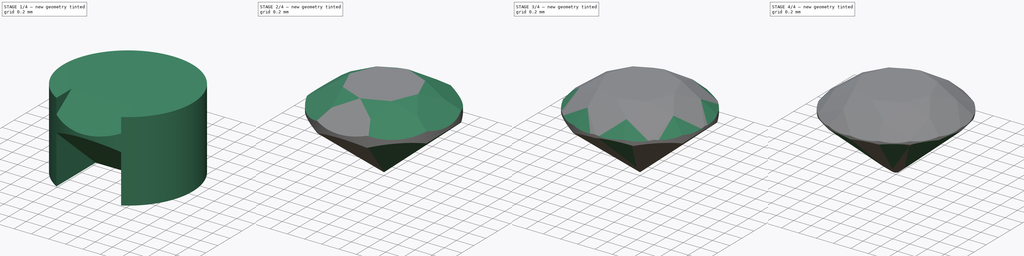
[diagram: build sequence overview — one tinted view per stage of 4, left to right]
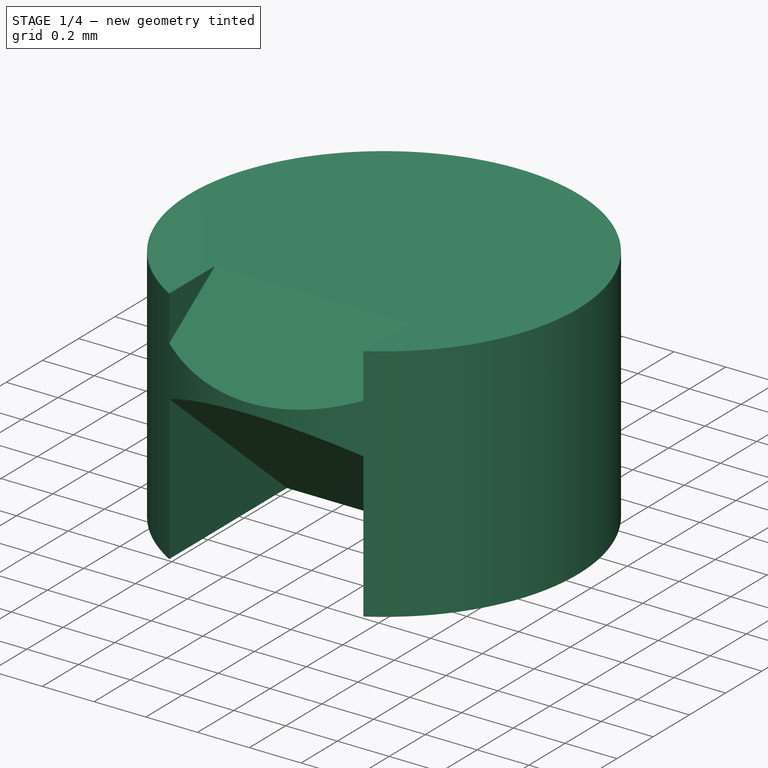
[diagram: stage 1 of 4 — iso view after this stage's code; geometry added in this stage tinted green]
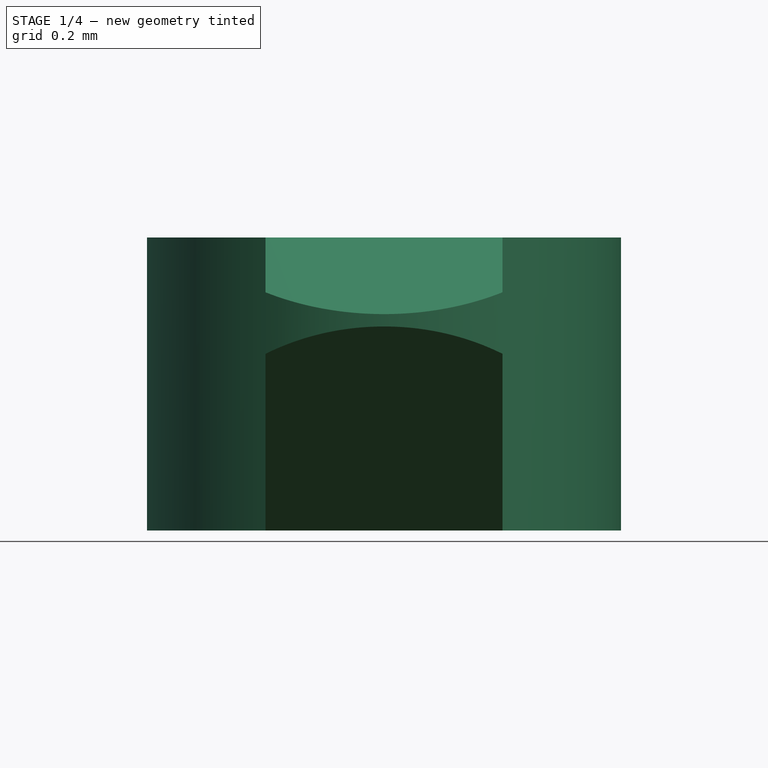
[diagram: stage 1 of 4 — front view after this stage's code; geometry added in this stage tinted green]
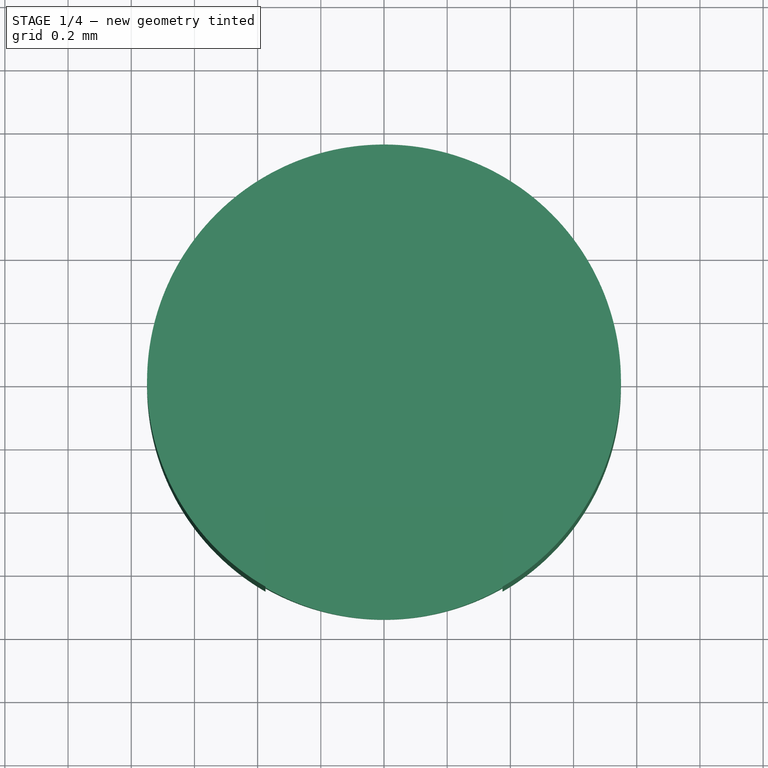
[diagram: stage 1 of 4 — top view after this stage's code; geometry added in this stage tinted green]
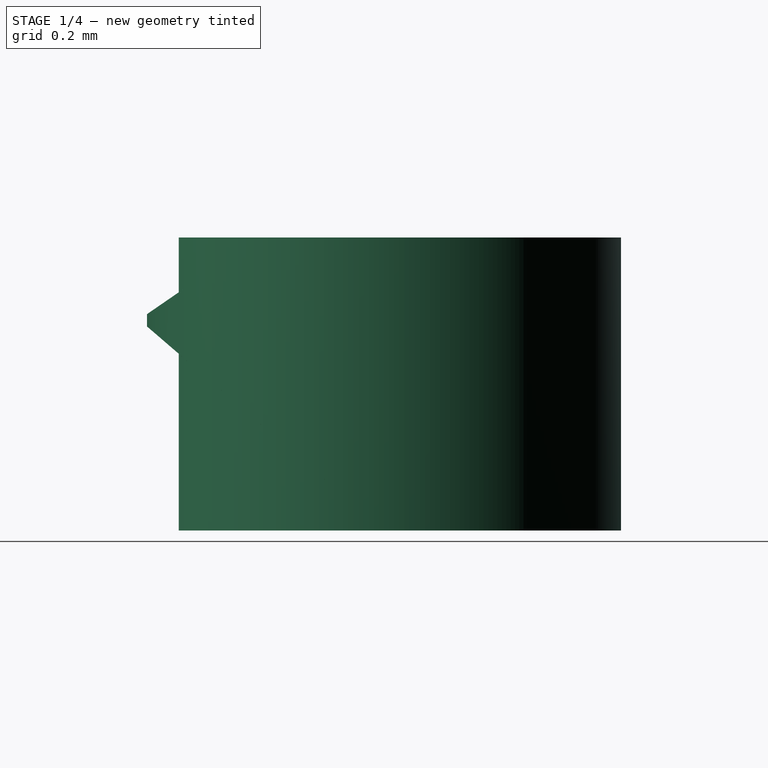
[diagram: stage 1 of 4 — right view after this stage's code; geometry added in this stage tinted green]
FCSTD DOCUMENT  (FreeCAD 0.19R24276 (Git))
Label: Diamante parametrico
License: All rights reserved
LicenseURL: http://en.wikipedia.org/wiki/All_rights_reserved
objects: Sketcher::SketchObject×12, PartDesign::Plane×7, PartDesign::Pocket×5, PartDesign::PolarPattern×4, PartDesign::Mirrored×2, PartDesign::MultiTransform×2, Spreadsheet::Sheet×1, PartDesign::Pad×1, PartDesign::Body×1, App::Part×1
note: 40 computed .brp shape members not serialized (recipe doc carries the construction recipe); baked Part::Feature solids carry a one-line shape summary decoded from their .brp

FEATURE [Spreadsheet::Sheet] Spreadsheet
  cells = B4=Diametro; C4(diametrodiamante)=1.5; D4=Radio; E4(radiodiamante)==C4 / 2; B5=Cara superior; C5(carasuperior)==C4 * 53 / 100; D5=Logitud de cara superior; E5(longitudcarasup)==C4 / 3.77; B6=Altura corona; C6(alturacorona)==C4 * 16.2 / 100; D6=Angulo corona; E6(angulocorona)=34.5; B7=Altura cintura; C7(alturacintura)==C4 * 2.5 / 100; B8=Altura Pabellon; C8(alturapabellon)==C4 * 43.1 / 100; D8=Angulo pabellon; E8(angulopabellon)=40.75; B9=Profundidad; C9(profundidad)==C4 * 59.9 / 100; D9=Longitud de Faceta; E9(longitudfacetainf)==C4 * 40 / 100; B10=Altura Total; C10(alturatotal)==C6 + C7 + C8
FEATURE [PartDesign::Plane] DatumPlane
  AttachmentOffset = pos=(0,0,-0.243) rot=(0,0,1;0rad)
  Length = 60
  MapMode = 5
  Placement = pos=(0,0,-0.243) rot=(0,0,1;0rad)
  ResizeMode = 0
  Support = -> [XY_Plane001]
  Width = 60
  expr: .AttachmentOffset.Base.z = -Spreadsheet.alturacorona
FEATURE [PartDesign::Plane] DatumPlane001
  AttachmentOffset = pos=(0,0,-0.2805) rot=(0,0,1;0rad)
  Length = 60
  MapMode = 5
  Placement = pos=(0,0,-0.2805) rot=(0,0,1;0rad)
  ResizeMode = 0
  Support = -> [XY_Plane001]
  Width = 60
  expr: .AttachmentOffset.Base.z = -Spreadsheet.alturacorona - Spreadsheet.alturacintura
FEATURE [PartDesign::Plane] DatumPlane002
  AttachmentOffset = pos=(0,0,-0.8985) rot=(0,0,1;0rad)
  Length = 60
  MapMode = 5
  Placement = pos=(0,0,-0.8985) rot=(0,0,1;0rad)
  ResizeMode = 0
  Support = -> [XY_Plane001]
  Width = 60
  expr: .AttachmentOffset.Base.z = -Spreadsheet.profundidad
FEATURE [PartDesign::Plane] DatumPlane003
  AttachmentOffset = pos=(0,0,0) rot=(0,1,0;0.392699rad)
  Length = 76.7586
  MapMode = 5
  Placement = pos=(0,0,0) rot=(0.427192,0.639338,0.639338;2.33414rad)
  ResizeMode = 0
  Support = -> [YZ_Plane001]
  Width = 61.4305
FEATURE [Sketcher::SketchObject] Sketch
  FullyConstrained = true
  MapMode = 5
  Placement = pos=(0,0,0) rot=(0.57735,0.57735,0.57735;2.0944rad)
  Support = -> [YZ_Plane001]
  expr: Constraints[23] = Spreadsheet.angulocorona
  expr: Constraints[16] = Spreadsheet.alturapabellon
  expr: Constraints[15] = Spreadsheet.alturacintura
  expr: Constraints[14] = Spreadsheet.alturacorona
  expr: Constraints[13] = Spreadsheet.carasuperior
  sketch-geometry (9):
    g0: LineSegment StartX=0.3975 StartY=2.85e-14 StartZ=0 EndX=-0.3975 EndY=-1.424e-13 EndZ=0
    g1: LineSegment StartX=-0.3975 StartY=-1.424e-13 StartZ=0 EndX=-0.751067 EndY=-0.243 EndZ=0
    g2: LineSegment StartX=-0.751067 StartY=-0.243 StartZ=0 EndX=-0.751067 EndY=-0.2805 EndZ=0
    g3: LineSegment StartX=-0.751067 StartY=-0.2805 StartZ=0 EndX=0 EndY=-0.927 EndZ=0
    g4: LineSegment StartX=0 StartY=-0.927 StartZ=0 EndX=0.751067 EndY=-0.2805 EndZ=0
    g5: LineSegment StartX=0.751067 StartY=-0.2805 StartZ=0 EndX=0.751067 EndY=-0.243 EndZ=0
    g6: LineSegment StartX=0.751067 StartY=-0.243 StartZ=0 EndX=0.3975 EndY=2.85e-14 EndZ=0
    g7: LineSegment StartX=-0.751067 StartY=-0.243 StartZ=0 EndX=0 EndY=-0.243 EndZ=0
    g8: LineSegment StartX=-0.751067 StartY=-0.2805 StartZ=0 EndX=0 EndY=-0.2805 EndZ=0
  constraints (24):
    c: PointOnObject(g0,g-1)
    c: Coincident(g0,g1)
    c: Coincident(g1,g2)
    c: Coincident(g2,g3)
    c: PointOnObject(g3,g-2)
    c: Coincident(g3,g4)
    c: Coincident(g4,g5)
    c: Vertical(g5)
    c: Coincident(g5,g6)
    c: Coincident(g6,g0)
    c: Symmetric(g0,g0,g-1)
    c: Symmetric(g1,g5,g-2)
    c: Symmetric(g2,g4,g-2)
    c: DistanceX(g0,g0) = 0.795
    c: DistanceY(g1,g0) = 0.243
    c: DistanceY(g2,g2) = 0.0375
    c: DistanceY(g3,g2) = 0.6465
    c: Coincident(g7,g1)
    c: Horizontal(g7)
    c: Coincident(g8,g2)
    c: Horizontal(g8)
    c: PointOnObject(g8,g-2)
    c: PointOnObject(g7,g-2)
    c: Angle(g7,g1) = 0.602139
FEATURE [Sketcher::SketchObject] Sketch001
  FullyConstrained = true
  MapMode = 5
  Support = -> [XY_Plane001]
  expr: Constraints[1] = Spreadsheet.radiodiamante
  sketch-geometry (1):
    g0: Circle CenterX=0 CenterY=0 CenterZ=0 NormalX=0 NormalY=0 NormalZ=1 AngleXU=0 Radius=0.75
  constraints (2):
    c: Coincident(g0,g-1)
    c: Radius(g0) = 0.75
FEATURE [PartDesign::Pad] Pad
  Direction = (1,1,1)
  Length = 0.927
  Length2 = 100
  Profile = -> Sketch001
  Refine = true
  Reversed = true
  Type = 0
  expr: Length = Spreadsheet.alturatotal
FEATURE [Sketcher::SketchObject] Sketch002
  ExternalGeometry = -> [Sketch]
  FullyConstrained = true
  MapMode = 5
  Placement = pos=(0,0,0) rot=(0.57735,0.57735,0.57735;2.0944rad)
  Support = -> [YZ_Plane001]
  expr: Constraints[13] = Spreadsheet.diametrodiamante
  sketch-geometry (6):
    g0: LineSegment StartX=-0.3975 StartY=-1e-16 StartZ=0 EndX=-0.751067 EndY=-0.243 EndZ=0
    g1: LineSegment StartX=-0.751067 StartY=-0.243 StartZ=0 EndX=-0.751067 EndY=-0.2805 EndZ=0
    g2: LineSegment StartX=-0.751067 StartY=-0.2805 StartZ=0 EndX=0 EndY=-0.927 EndZ=0
    g3: LineSegment StartX=0 StartY=-0.927 StartZ=0 EndX=-1.5 EndY=-0.927 EndZ=0
    g4: LineSegment StartX=-1.5 StartY=-0.927 StartZ=0 EndX=-1.5 EndY=0 EndZ=0
    g5: LineSegment StartX=-1.5 StartY=0 StartZ=0 EndX=-0.3975 EndY=-1e-16 EndZ=0
  constraints (14):
    c: Coincident(g-3,g0)
    c: Coincident(g0,g-4)
    c: Coincident(g0,g1)
    c: Coincident(g1,g-5)
    c: Coincident(g1,g2)
    c: Coincident(g2,g-5)
    c: Coincident(g2,g3)
    c: Horizontal(g3)
    c: Coincident(g3,g4)
    c: PointOnObject(g4,g-1)
    c: Vertical(g4)
    c: Coincident(g4,g5)
    c: Coincident(g5,g0)
    c: DistanceX(g4,g-1) = 1.5
FEATURE [PartDesign::Pocket] Pocket
  BaseFeature = -> Pad
  Length = 0.75
  Length2 = 100
  Midplane = true
  Profile = -> Sketch002
  Refine = true
  Type = 0
  expr: Length = Spreadsheet.radiodiamante
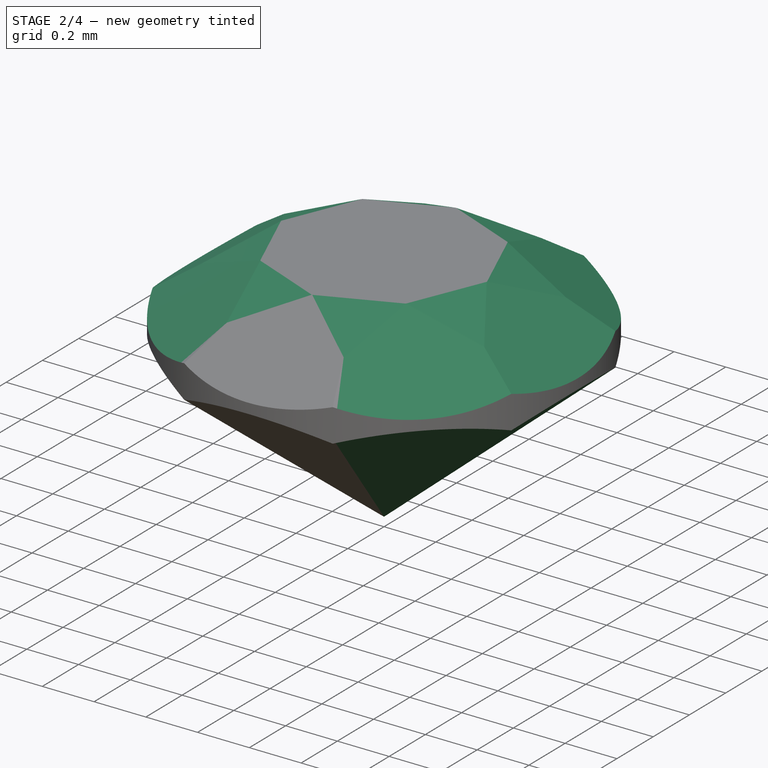
[diagram: stage 2 of 4 — iso view after this stage's code; geometry added in this stage tinted green]
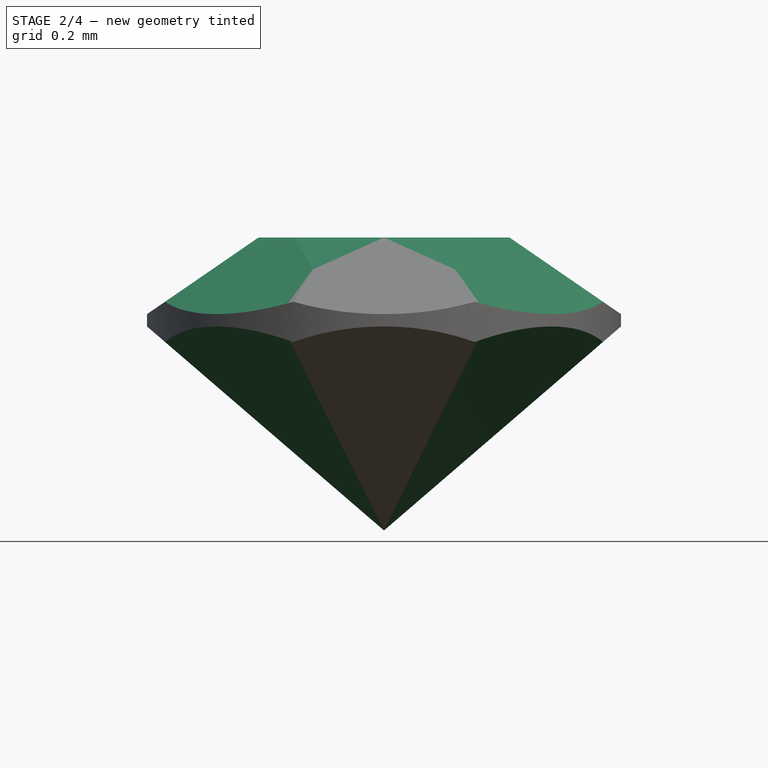
[diagram: stage 2 of 4 — front view after this stage's code; geometry added in this stage tinted green]
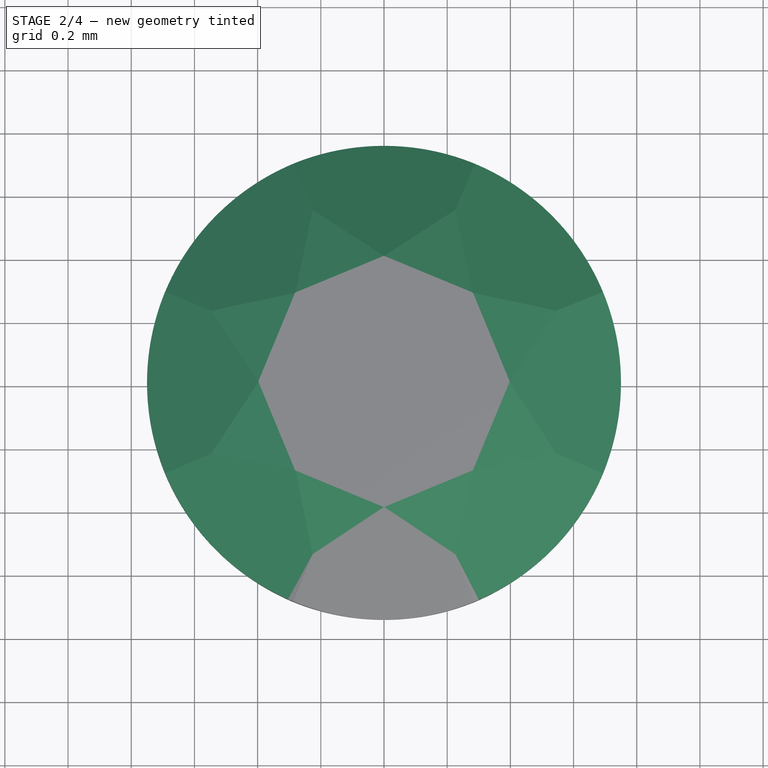
[diagram: stage 2 of 4 — top view after this stage's code; geometry added in this stage tinted green]
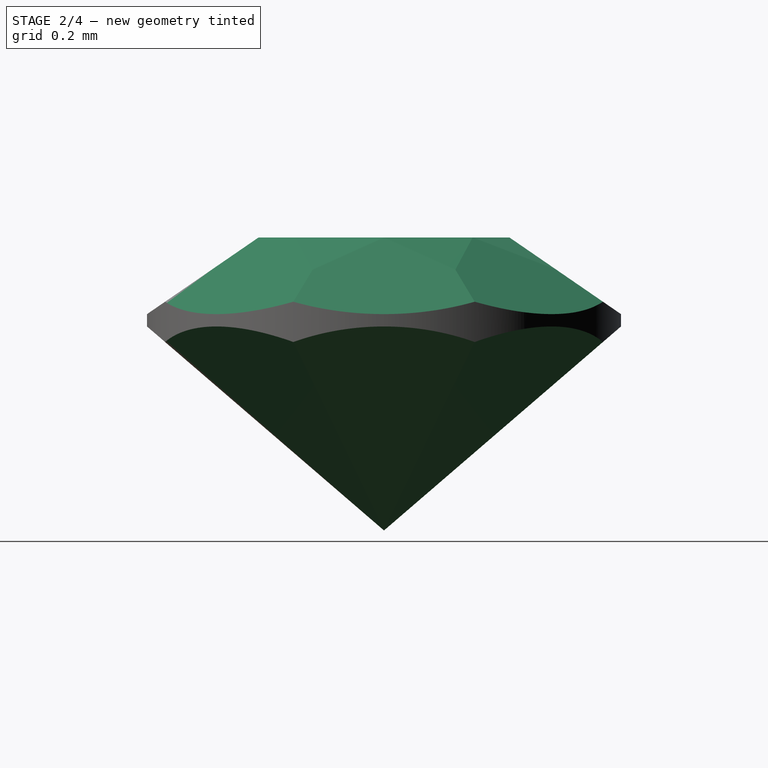
[diagram: stage 2 of 4 — right view after this stage's code; geometry added in this stage tinted green]
FEATURE [PartDesign::PolarPattern] PolarPattern
  Angle = 360
  Axis = -> Z_Axis001
  BaseFeature = -> Pocket
  Occurrences = 8
  Originals = -> [Pocket]
  Refine = true
FEATURE [Sketcher::SketchObject] Sketch003
  FullyConstrained = true
  MapMode = 5
  Support = -> [XY_Plane001]
  expr: Constraints[5] = Spreadsheet.longitudcarasup
  sketch-geometry (2):
    g0: LineSegment StartX=0 StartY=0 StartZ=0 EndX=0 EndY=-0.397878 EndZ=0
    g1: LineSegment StartX=0 StartY=0 StartZ=0 EndX=0.281342 EndY=-0.281342 EndZ=0
  constraints (6):
    c: Coincident(g0,g-1)
    c: PointOnObject(g0,g-2)
    c: Coincident(g1,g0)
    c: Equal(g1,g0)
    c: Angle(g0,g1) = 0.785398
    c: DistanceY(g0,g0) = 0.397878
FEATURE [Sketcher::SketchObject] Sketch004
  ExternalGeometry = -> [PolarPattern]
  FullyConstrained = true
  MapMode = 5
  Placement = pos=(0,0,0) rot=(0.427192,0.639338,0.639338;2.33414rad)
  Support = -> [DatumPlane003]
  sketch-geometry (1):
    g0: LineSegment StartX=0 StartY=0 StartZ=0 EndX=-0.590125 EndY=-0.101515 EndZ=0
  constraints (2):
    c: Coincident(g0,g-1)
    c: Symmetric(g-3,g-3,g0)
FEATURE [PartDesign::Plane] DatumPlane004
  Length = 79.8037
  MapMode = 13
  Placement = pos=(0.169058,-0.408142,-0.0338382) rot=(0.729837,0.145174,0.668029;0.578801rad)
  ResizeMode = 0
  Support = -> [Sketch004,Sketch003]
  Width = 94.6631
FEATURE [Sketcher::SketchObject] Sketch005
  FullyConstrained = true
  MapMode = 5
  Placement = pos=(0.169058,-0.408142,-0.0338382) rot=(0.729837,0.145174,0.668029;0.578801rad)
  Support = -> [DatumPlane004]
  expr: Constraints[1] = Spreadsheet.radiodiamante
  sketch-geometry (1):
    g0: Circle CenterX=0 CenterY=0 CenterZ=0 NormalX=0 NormalY=0 NormalZ=1 AngleXU=0 Radius=0.75
  constraints (2):
    c: Coincident(g0,g-1)
    c: Radius(g0) = 0.75
FEATURE [PartDesign::Pocket] Pocket001
  BaseFeature = -> PolarPattern
  Length = 0.75
  Length2 = 100
  Profile = -> Sketch005
  Refine = true
  Reversed = true
  Type = 0
  expr: Length = Spreadsheet.radiodiamante
FEATURE [PartDesign::PolarPattern] PolarPattern001
  Angle = 360
  Axis = -> Z_Axis001
  BaseFeature = -> Pocket001
  Occurrences = 8
  Originals = -> [Pocket001]
  Refine = true
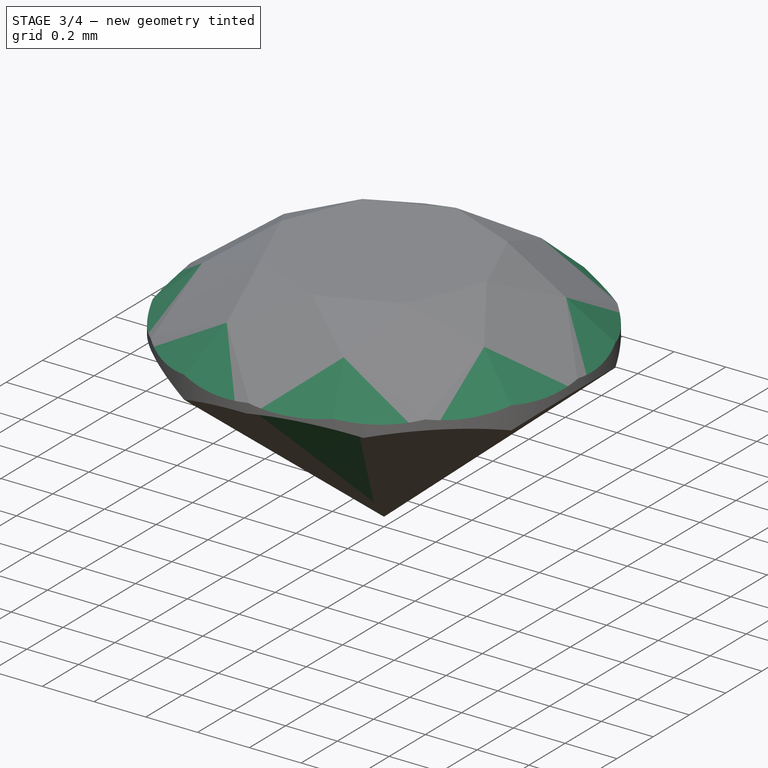
[diagram: stage 3 of 4 — iso view after this stage's code; geometry added in this stage tinted green]
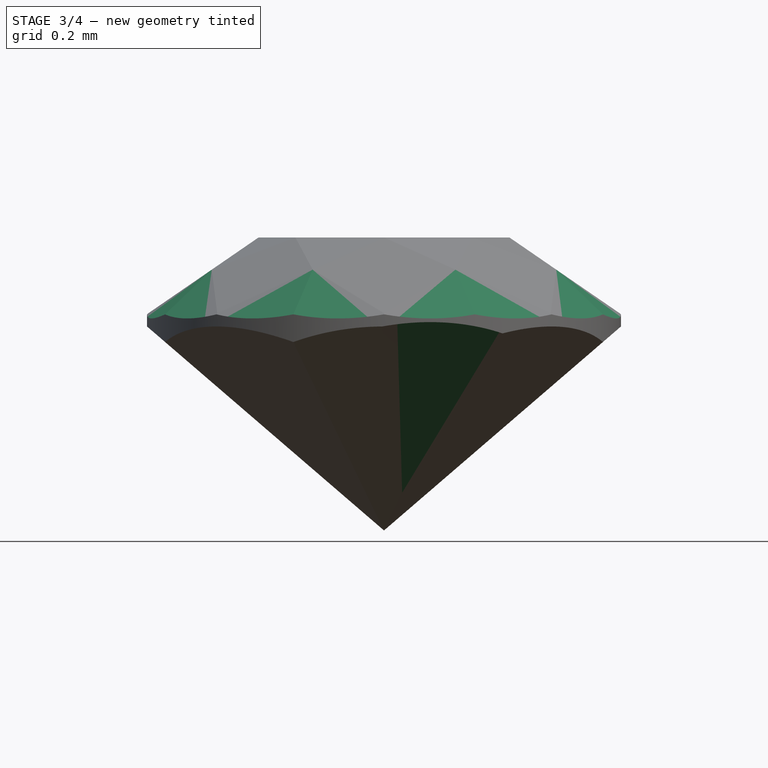
[diagram: stage 3 of 4 — front view after this stage's code; geometry added in this stage tinted green]
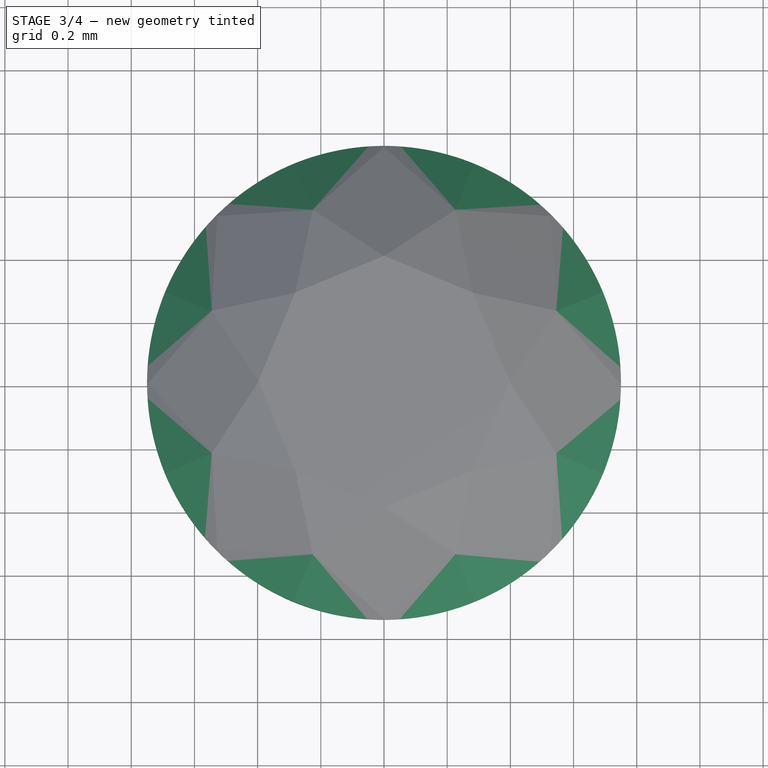
[diagram: stage 3 of 4 — top view after this stage's code; geometry added in this stage tinted green]
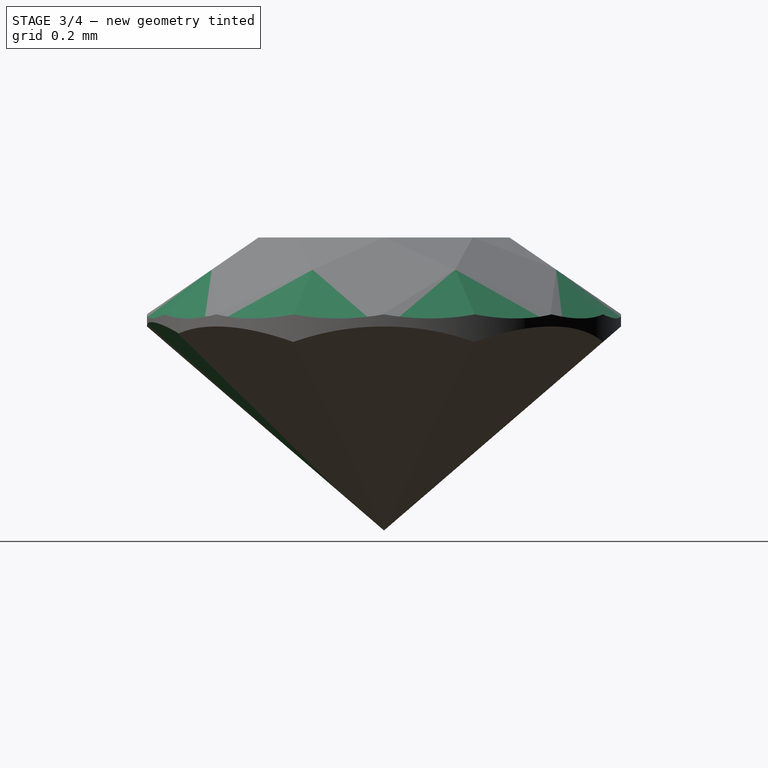
[diagram: stage 3 of 4 — right view after this stage's code; geometry added in this stage tinted green]
FEATURE [Sketcher::SketchObject] Sketch006
  FullyConstrained = true
  MapMode = 5
  Placement = pos=(0,0,-0.243) rot=(0,0,1;0rad)
  Support = -> [DatumPlane]
  expr: Constraints[5] = Spreadsheet.radiodiamante
  sketch-geometry (2):
    g0: LineSegment StartX=0 StartY=0 StartZ=0 EndX=0 EndY=-0.75 EndZ=0
    g1: LineSegment StartX=0 StartY=0 StartZ=0 EndX=0.287013 EndY=-0.69291 EndZ=0
  constraints (6):
    c: Coincident(g0,g-1)
    c: PointOnObject(g0,g-2)
    c: Coincident(g1,g0)
    c: Equal(g0,g1)
    c: Angle(g0,g1) = 0.392699
    c: DistanceY(g0,g0) = 0.75
FEATURE [PartDesign::Plane] DatumPlane005
  Length = 72.2634
  MapMode = 13
  Placement = pos=(0.170948,-0.662705,-0.195838) rot=(0.964339,0.094979,0.24704;0.758747rad)
  ResizeMode = 0
  Support = -> [Sketch004,Sketch006]
  Width = 90.616
FEATURE [Sketcher::SketchObject] Sketch007
  FullyConstrained = true
  MapMode = 5
  Placement = pos=(0.170948,-0.662705,-0.195838) rot=(0.964339,0.094979,0.24704;0.758747rad)
  Support = -> [DatumPlane005]
  expr: Constraints[1] = Spreadsheet.radiodiamante
  sketch-geometry (1):
    g0: Circle CenterX=0 CenterY=0 CenterZ=0 NormalX=0 NormalY=0 NormalZ=1 AngleXU=0 Radius=0.75
  constraints (2):
    c: Coincident(g0,g-1)
    c: Radius(g0) = 0.75
FEATURE [PartDesign::Pocket] Pocket002
  BaseFeature = -> PolarPattern001
  Length = 0.75
  Length2 = 100
  Profile = -> Sketch007
  Refine = true
  Reversed = true
  Type = 0
  expr: Length = Spreadsheet.radiodiamante
FEATURE [PartDesign::Mirrored] Mirrored
  MirrorPlane = -> YZ_Plane001
  Refine = true
FEATURE [PartDesign::PolarPattern] PolarPattern002
  Angle = 360
  Axis = -> Z_Axis001
  Occurrences = 8
  Refine = true
FEATURE [PartDesign::MultiTransform] MultiTransform
  BaseFeature = -> Pocket002
  Originals = -> [Pocket002]
  Refine = true
  Transformations = -> [Mirrored,PolarPattern002]
FEATURE [Sketcher::SketchObject] Sketch008
  FullyConstrained = true
  MapMode = 5
  Placement = pos=(0,0,-0.2805) rot=(0,0,1;0rad)
  Support = -> [DatumPlane001]
  expr: Constraints[5] = Spreadsheet.radiodiamante
  sketch-geometry (2):
    g0: LineSegment StartX=0 StartY=0 StartZ=0 EndX=0 EndY=-0.75 EndZ=0
    g1: LineSegment StartX=0 StartY=0 StartZ=0 EndX=0.287013 EndY=-0.69291 EndZ=0
  constraints (6):
    c: Coincident(g0,g-1)
    c: PointOnObject(g0,g-2)
    c: Coincident(g1,g0)
    c: Equal(g1,g0)
    c: Angle(g0,g1) = 0.392699
    c: DistanceY(g0,g0) = 0.75
FEATURE [Sketcher::SketchObject] Sketch009
  ExternalGeometry = -> [MultiTransform,Sketch008]
  FullyConstrained = true
  MapMode = 5
  Placement = pos=(0,0,0) rot=(0.427192,0.639338,0.639338;2.33414rad)
  Support = -> [DatumPlane003]
  expr: Constraints[2] = Spreadsheet.longitudfacetainf
  sketch-geometry (1):
    g0: LineSegment StartX=-0.75 StartY=-0.2805 StartZ=0 EndX=-0.15 EndY=-0.807712 EndZ=0
  constraints (3):
    c: Coincident(g0,g-4)
    c: PointOnObject(g0,g-3)
    c: DistanceX(g0,g0) = 0.6
FEATURE [PartDesign::Plane] DatumPlane006
  Length = 72.264
  MapMode = 13
  Placement = pos=(0.114805,-0.527164,-0.456237) rot=(0.994486,0.097948,0.037459;2.41473rad)
  ResizeMode = 0
  Support = -> [Sketch009,Sketch008]
  Width = 90.6243
FEATURE [Sketcher::SketchObject] Sketch010
  FullyConstrained = true
  MapMode = 5
  Placement = pos=(0.114805,-0.527164,-0.456237) rot=(0.994486,0.097948,0.037459;2.41473rad)
  Support = -> [DatumPlane006]
  expr: Constraints[1] = Spreadsheet.radiodiamante
  sketch-geometry (1):
    g0: Circle CenterX=0 CenterY=0 CenterZ=0 NormalX=0 NormalY=0 NormalZ=1 AngleXU=0 Radius=0.75
  constraints (2):
    c: Coincident(g-1,g0)
    c: Radius(g0) = 0.75
FEATURE [PartDesign::Pocket] Pocket003
  BaseFeature = -> MultiTransform
  Length = 0.75
  Length2 = 100
  Profile = -> Sketch010
  Refine = true
  Reversed = true
  Type = 0
  expr: Length = Spreadsheet.radiodiamante
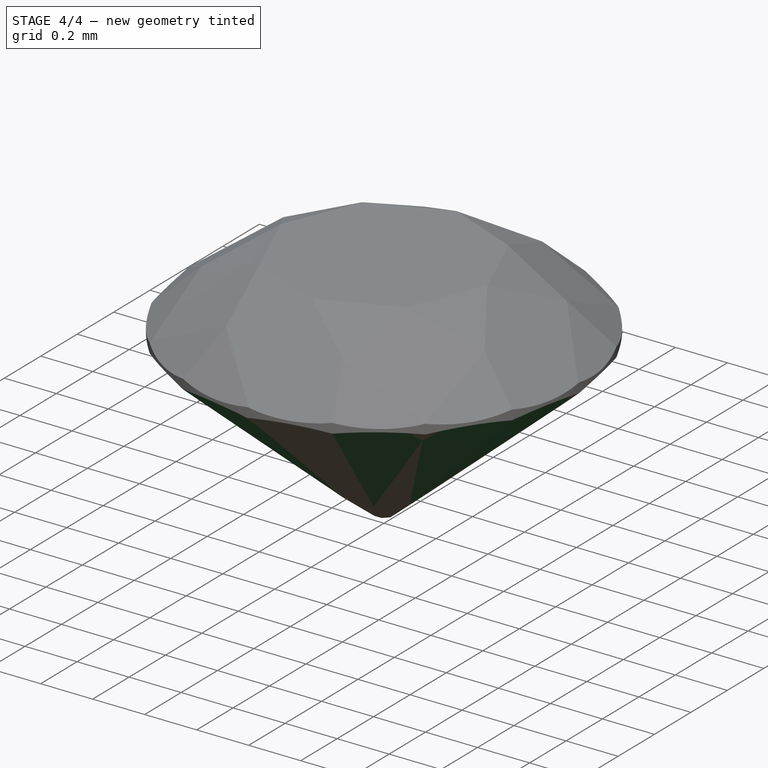
[diagram: stage 4 of 4 — iso view after this stage's code; geometry added in this stage tinted green]
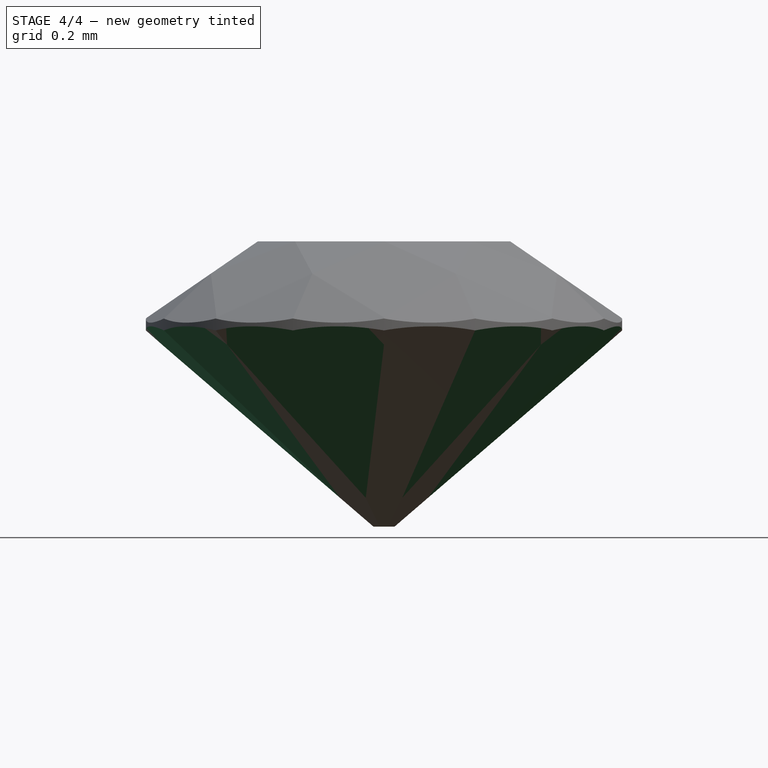
[diagram: stage 4 of 4 — front view after this stage's code; geometry added in this stage tinted green]
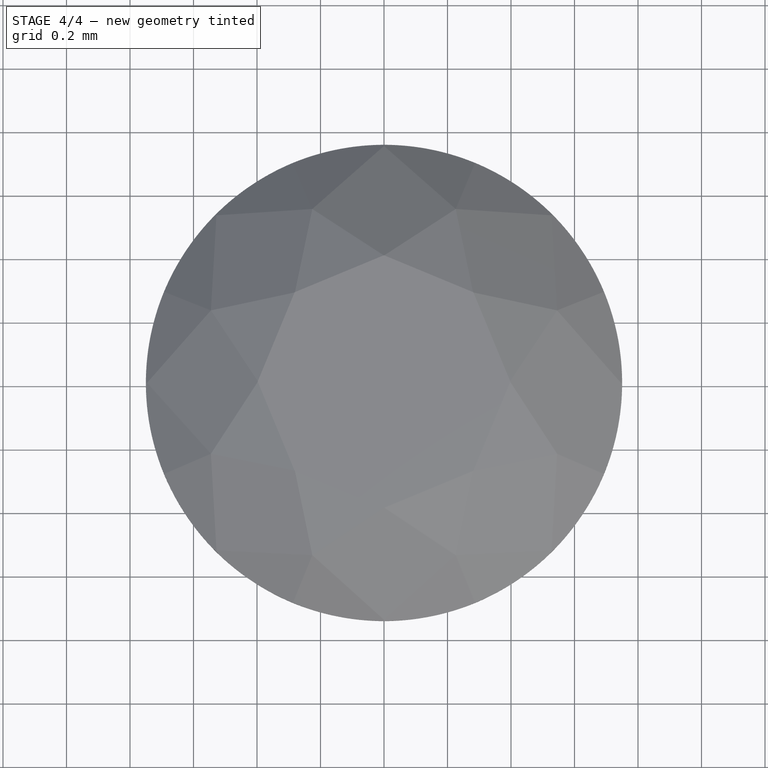
[diagram: stage 4 of 4 — top view after this stage's code; geometry added in this stage tinted green]
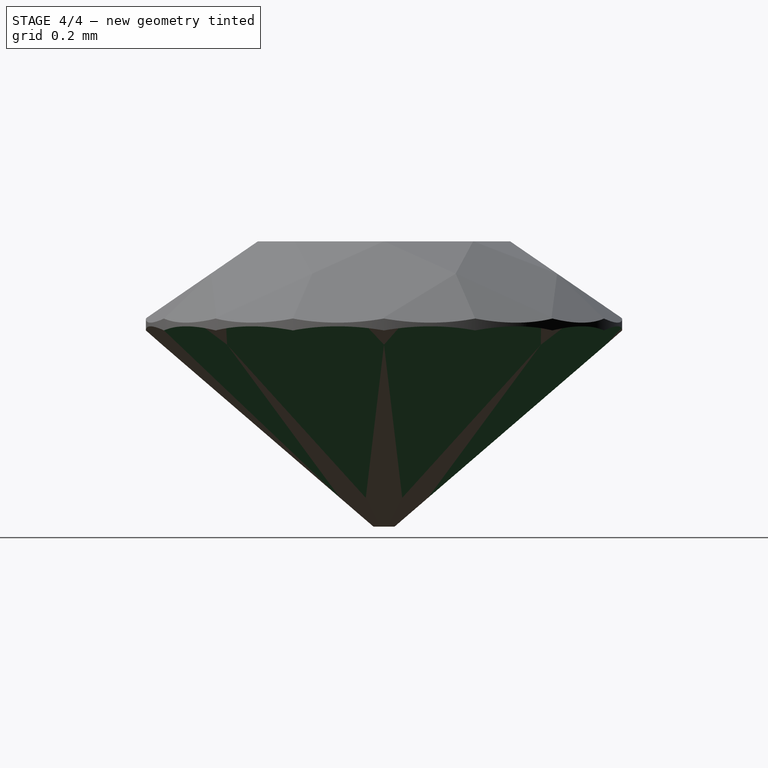
[diagram: stage 4 of 4 — right view after this stage's code; geometry added in this stage tinted green]
FEATURE [PartDesign::Mirrored] Mirrored001
  MirrorPlane = -> YZ_Plane001
  Refine = true
FEATURE [PartDesign::PolarPattern] PolarPattern003
  Angle = 360
  Axis = -> Z_Axis001
  Occurrences = 8
  Refine = true
FEATURE [PartDesign::MultiTransform] MultiTransform001
  BaseFeature = -> Pocket003
  Originals = -> [Pocket003]
  Refine = true
  Transformations = -> [Mirrored001,PolarPattern003]
FEATURE [Sketcher::SketchObject] Sketch011
  FullyConstrained = true
  MapMode = 5
  Placement = pos=(0,0,0) rot=(1,0,0;1.5708rad)
  Support = -> [XZ_Plane001]
  expr: Constraints[10] = Spreadsheet.diametrodiamante
  expr: Constraints[8] = Spreadsheet.profundidad
  sketch-geometry (4):
    g0: LineSegment StartX=-0.75 StartY=-0.8985 StartZ=0 EndX=0.75 EndY=-0.8985 EndZ=0
    g1: LineSegment StartX=0.75 StartY=-0.8985 StartZ=0 EndX=0.75 EndY=-2.3985 EndZ=0
    g2: LineSegment StartX=0.75 StartY=-2.3985 StartZ=0 EndX=-0.75 EndY=-2.3985 EndZ=0
    g3: LineSegment StartX=-0.75 StartY=-2.3985 StartZ=0 EndX=-0.75 EndY=-0.8985 EndZ=0
  constraints (11):
    c: Coincident(g0,g1)
    c: Coincident(g1,g2)
    c: Coincident(g2,g3)
    c: Coincident(g3,g0)
    c: Horizontal(g2)
    c: Vertical(g1)
    c: Vertical(g3)
    c: Symmetric(g0,g0,g-2)
    c: DistanceY(g0,g-1) = 0.8985
    c: Equal(g1,g0)
    c: DistanceX(g2,g2) = 1.5
FEATURE [PartDesign::Pocket] Pocket004
  BaseFeature = -> MultiTransform001
  Length = 0.75
  Length2 = 100
  Midplane = true
  Profile = -> Sketch011
  Refine = true
  Type = 0
  expr: Length = Spreadsheet.radiodiamante
FEATURE [PartDesign::Body] Body
  Group = -> [DatumPlane,DatumPlane001,DatumPlane002,DatumPlane003,Sketch,Sketch001,Pad,Sketch002,Pocket,PolarPattern,Sketch003,Sketch004,DatumPlane004,Sketch005,Pocket001,PolarPattern001,Sketch006,DatumPlane005,Sketch007,Pocket002,MultiTransform,Mirrored,PolarPattern002,Sketch008,Sketch009,DatumPlane006,Sketch010,Pocket003,MultiTransform001,Mirrored001,PolarPattern003,Sketch011,Pocket004]
  Origin = -> Origin001
  Tip = -> Pocket004
FEATURE [App::Part] Part  label="Diamante"
  Group = -> [Spreadsheet,Body]
  Origin = -> Origin
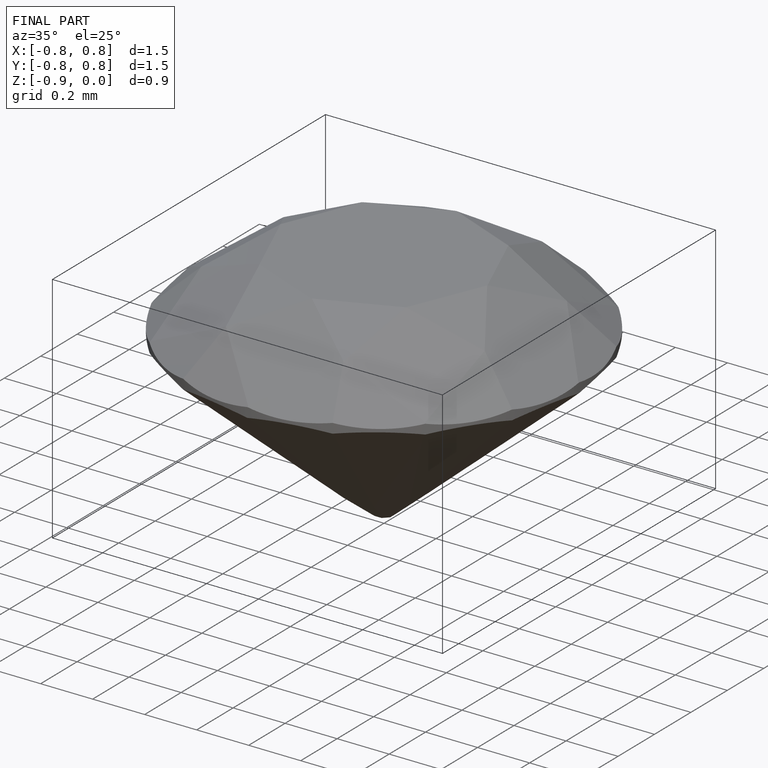
[diagram: finished part — iso view with bounding-box wireframe]
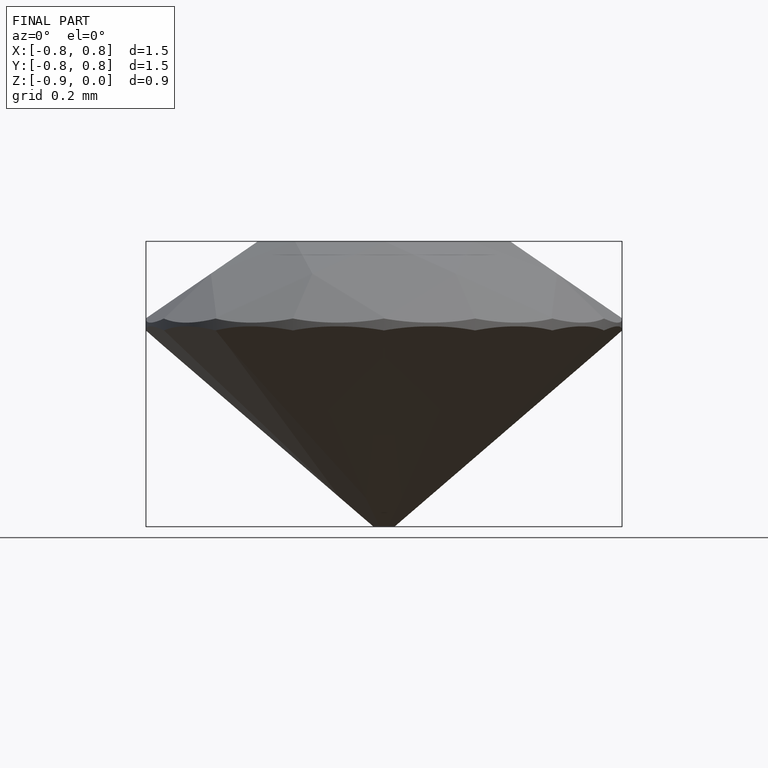
[diagram: finished part — front view with bounding-box wireframe]
